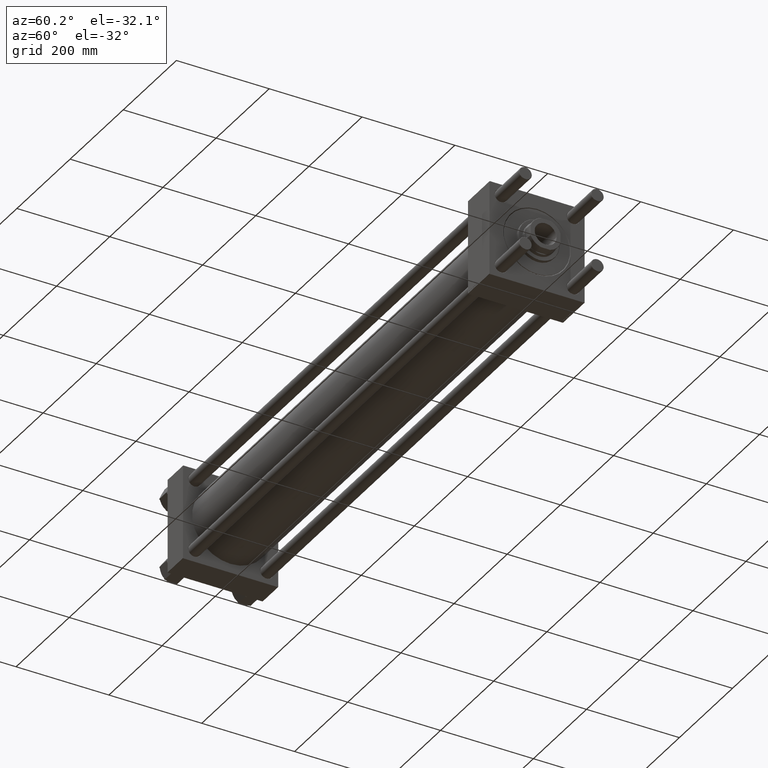
[diagram: clean part render]
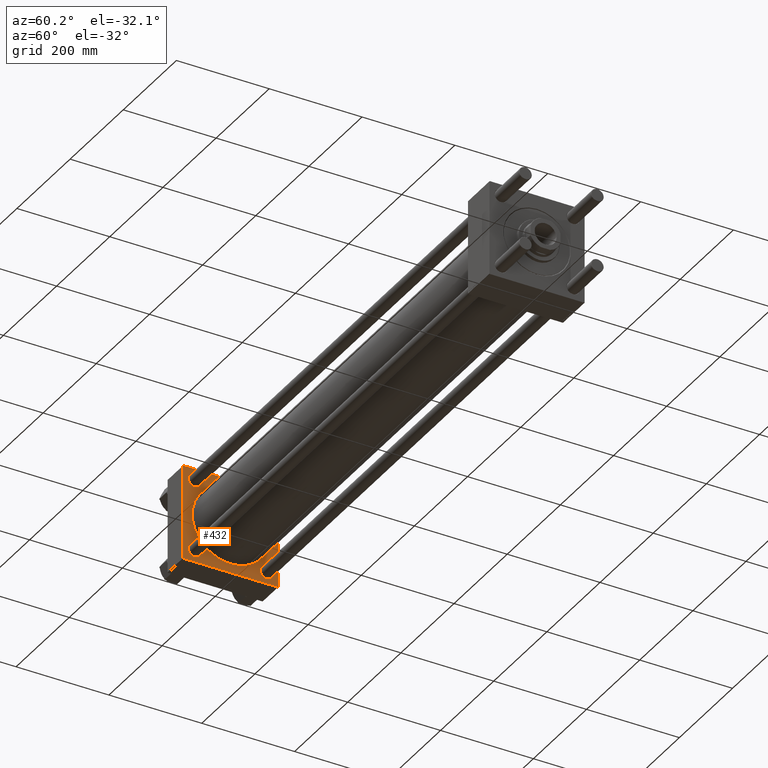
[diagram: same view with one face highlighted and labeled with its STEP entity id]
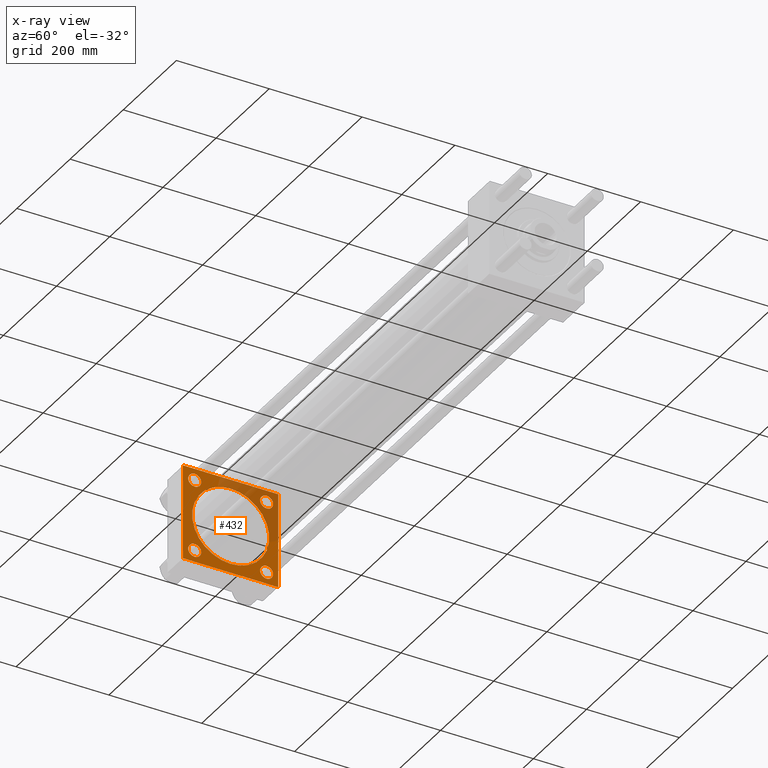
[diagram: x-ray of the same camera — body ghosted, the highlighted face saturated]
A machine part, auxiliary view. The second image highlights one B-rep face of the part: STEP entity #432.
The next image is the same camera in x-ray: the body ghosted, the highlighted face saturated — about 29% of this face is hidden behind the body in this view.
In plain terms, the highlighted planar face has unit normal (-1, 0, 0).
Its self-contained STEP definition (entity closure, byte-faithful):
#49 = EDGE_CURVE ( 'NONE', #44096, #53611, #40705, .T. ) ;
#432 = ADVANCED_FACE ( 'NONE', ( #20638, #2705, #47551, #29034, #37418, #25560 ), #51327, .F. ) ;
#537 = CARTESIAN_POINT ( 'NONE',  ( 58.00000000000000000, -101.9999999999999432, -102.5000000000000000 ) ) ;
#564 = CARTESIAN_POINT ( 'NONE',  ( 58.00000000000000000, 77.44999999999998863, -77.45000000000001705 ) ) ;
#686 = DIRECTION ( 'NONE',  ( 0.000000000000000000, 0.000000000000000000, 1.000000000000000000 ) ) ;
#773 = CIRCLE ( 'NONE', #2648, 13.99999999999956835 ) ;
#820 = AXIS2_PLACEMENT_3D ( 'NONE', #19798, #14883, #11125 ) ;
#1198 = VECTOR ( 'NONE', #1915, 1000.000000000000114 ) ;
#1405 = ORIENTED_EDGE ( 'NONE', *, *, #20593, .T. ) ;
#1511 = CARTESIAN_POINT ( 'NONE',  ( 58.00000000000000000, -102.4999999999999716, 102.5000000000000000 ) ) ;
#1603 = AXIS2_PLACEMENT_3D ( 'NONE', #39588, #7796, #57256 ) ;
#1915 = DIRECTION ( 'NONE',  ( -0.000000000000000000, 0.7071067811865474617, 0.7071067811865474617 ) ) ;
#2648 = AXIS2_PLACEMENT_3D ( 'NONE', #16372, #16931, #51414 ) ;
#2705 = FACE_BOUND ( 'NONE', #10591, .T. ) ;
#2916 = EDGE_CURVE ( 'NONE', #9733, #49512, #43675, .T. ) ;
#2994 = CARTESIAN_POINT ( 'NONE',  ( 58.00000000000000000, 102.5000000000000284, 102.5000000000000284 ) ) ;
#3543 = VERTEX_POINT ( 'NONE', #43717 ) ;
#4305 = EDGE_CURVE ( 'NONE', #53048, #13144, #54957, .T. ) ;
#4880 = DIRECTION ( 'NONE',  ( 0.000000000000000000, 0.7071067811865474617, -0.7071067811865474617 ) ) ;
#5279 = CIRCLE ( 'NONE', #1603, 13.99999999999956835 ) ;
#5709 = VERTEX_POINT ( 'NONE', #30022 ) ;
#5765 = DIRECTION ( 'NONE',  ( 0.000000000000000000, -1.000000000000000000, -1.353930517835556973E-16 ) ) ;
#5778 = DIRECTION ( 'NONE',  ( 0.000000000000000000, 0.000000000000000000, 1.000000000000000000 ) ) ;
#5958 = ORIENTED_EDGE ( 'NONE', *, *, #50037, .T. ) ;
#6328 = CIRCLE ( 'NONE', #8200, 13.99999999999956835 ) ;
#6626 = CARTESIAN_POINT ( 'NONE',  ( 58.00000000000000000, -77.44999999999996021, -77.45000000000003126 ) ) ;
#7622 = CARTESIAN_POINT ( 'NONE',  ( 58.00000000000000000, 0.000000000000000000, 0.000000000000000000 ) ) ;
#7796 = DIRECTION ( 'NONE',  ( -1.000000000000000000, 0.000000000000000000, 0.000000000000000000 ) ) ;
#8200 = AXIS2_PLACEMENT_3D ( 'NONE', #564, #19078, #36726 ) ;
#8437 = DIRECTION ( 'NONE',  ( 0.000000000000000000, 0.000000000000000000, 1.000000000000000000 ) ) ;
#8469 = DIRECTION ( 'NONE',  ( 0.000000000000000000, 0.000000000000000000, -1.000000000000000000 ) ) ;
#9047 = CARTESIAN_POINT ( 'NONE',  ( 58.00000000000000000, 77.44999999999998863, -91.44999999999959073 ) ) ;
#9090 = VERTEX_POINT ( 'NONE', #9047 ) ;
#9648 = EDGE_CURVE ( 'NONE', #5709, #21693, #34536, .T. ) ;
#9653 = CARTESIAN_POINT ( 'NONE',  ( 58.00000000000000000, 102.0000000000000142, -102.4999999999999716 ) ) ;
#9733 = VERTEX_POINT ( 'NONE', #18006 ) ;
#10129 = ORIENTED_EDGE ( 'NONE', *, *, #49, .T. ) ;
#10548 = VECTOR ( 'NONE', #4880, 1000.000000000000114 ) ;
#10591 = EDGE_LOOP ( 'NONE', ( #38425, #1405 ) ) ;
#11125 = DIRECTION ( 'NONE',  ( 0.000000000000000000, 0.000000000000000000, 1.000000000000000000 ) ) ;
#11402 = AXIS2_PLACEMENT_3D ( 'NONE', #6626, #54396, #14729 ) ;
#12540 = DIRECTION ( 'NONE',  ( -0.000000000000000000, -0.7071067811865474617, -0.7071067811865474617 ) ) ;
#12572 = VERTEX_POINT ( 'NONE', #38116 ) ;
#13144 = VERTEX_POINT ( 'NONE', #13981 ) ;
#13276 = CARTESIAN_POINT ( 'NONE',  ( 58.00000000000000000, 102.0000000000000142, 102.5000000000000284 ) ) ;
#13580 = VECTOR ( 'NONE', #19170, 1000.000000000000000 ) ;
#13594 = DIRECTION ( 'NONE',  ( 1.000000000000000000, -0.000000000000000000, -0.000000000000000000 ) ) ;
#13793 = CARTESIAN_POINT ( 'NONE',  ( 58.00000000000000000, -77.44999999999996021, 77.45000000000003126 ) ) ;
#13981 = CARTESIAN_POINT ( 'NONE',  ( 58.00000000000000000, -77.44999999999996021, 91.44999999999960494 ) ) ;
#14729 = DIRECTION ( 'NONE',  ( 0.000000000000000000, 0.000000000000000000, 1.000000000000000000 ) ) ;
#14826 = ORIENTED_EDGE ( 'NONE', *, *, #21260, .T. ) ;
#14883 = DIRECTION ( 'NONE',  ( -1.000000000000000000, 0.000000000000000000, 0.000000000000000000 ) ) ;
#15382 = LINE ( 'NONE', #1511, #13580 ) ;
#15590 = CIRCLE ( 'NONE', #51693, 13.99999999999956835 ) ;
#15644 = VECTOR ( 'NONE', #8469, 1000.000000000000000 ) ;
#16178 = EDGE_CURVE ( 'NONE', #3543, #20639, #5279, .T. ) ;
#16372 = CARTESIAN_POINT ( 'NONE',  ( 58.00000000000000000, 77.44999999999998863, 77.45000000000001705 ) ) ;
#16657 = EDGE_CURVE ( 'NONE', #21693, #9733, #15382, .T. ) ;
#16931 = DIRECTION ( 'NONE',  ( -1.000000000000000000, 0.000000000000000000, 0.000000000000000000 ) ) ;
#17099 = DIRECTION ( 'NONE',  ( -1.000000000000000000, 0.000000000000000000, 0.000000000000000000 ) ) ;
#17456 = CIRCLE ( 'NONE', #820, 13.99999999999956835 ) ;
#18006 = CARTESIAN_POINT ( 'NONE',  ( 58.00000000000000000, -102.5000000000000000, -101.9999999999998863 ) ) ;
#18439 = CARTESIAN_POINT ( 'NONE',  ( 58.00000000000000000, 102.0000000000000142, 102.5000000000000284 ) ) ;
#18628 = ORIENTED_EDGE ( 'NONE', *, *, #4305, .T. ) ;
#19034 = CIRCLE ( 'NONE', #23624, 83.00000000000000000 ) ;
#19078 = DIRECTION ( 'NONE',  ( -1.000000000000000000, 0.000000000000000000, 0.000000000000000000 ) ) ;
#19170 = DIRECTION ( 'NONE',  ( 0.000000000000000000, -1.353930517835556973E-16, -1.000000000000000000 ) ) ;
#19350 = VERTEX_POINT ( 'NONE', #21415 ) ;
#19558 = ORIENTED_EDGE ( 'NONE', *, *, #31595, .T. ) ;
#19769 = DIRECTION ( 'NONE',  ( -1.000000000000000000, 0.000000000000000000, 0.000000000000000000 ) ) ;
#19798 = CARTESIAN_POINT ( 'NONE',  ( 58.00000000000000000, -77.44999999999996021, -77.45000000000003126 ) ) ;
#20249 = EDGE_CURVE ( 'NONE', #20639, #3543, #773, .T. ) ;
#20593 = EDGE_CURVE ( 'NONE', #49605, #9090, #6328, .T. ) ;
#20638 = FACE_BOUND ( 'NONE', #41543, .T. ) ;
#20639 = VERTEX_POINT ( 'NONE', #32125 ) ;
#20696 = LINE ( 'NONE', #39188, #44278 ) ;
#20927 = DIRECTION ( 'NONE',  ( 0.000000000000000000, 0.000000000000000000, 1.000000000000000000 ) ) ;
#21260 = EDGE_CURVE ( 'NONE', #33025, #36097, #17456, .T. ) ;
#21415 = CARTESIAN_POINT ( 'NONE',  ( 58.00000000000004974, -2.602085213965210642E-15, 83.00000000000000000 ) ) ;
#21540 = DIRECTION ( 'NONE',  ( 0.000000000000000000, -1.000000000000000000, -1.353930517835556727E-16 ) ) ;
#21597 = AXIS2_PLACEMENT_3D ( 'NONE', #40334, #55008, #686 ) ;
#21693 = VERTEX_POINT ( 'NONE', #27716 ) ;
#21968 = DIRECTION ( 'NONE',  ( 0.000000000000000000, -0.7071067811865474617, 0.7071067811865474617 ) ) ;
#22577 = EDGE_CURVE ( 'NONE', #44096, #49512, #20696, .T. ) ;
#23624 = AXIS2_PLACEMENT_3D ( 'NONE', #23713, #13594, #5778 ) ;
#23713 = CARTESIAN_POINT ( 'NONE',  ( 58.00000000000004974, -2.602085213965210642E-15, 0.000000000000000000 ) ) ;
#23845 = EDGE_CURVE ( 'NONE', #12572, #53611, #48117, .T. ) ;
#24740 = VECTOR ( 'NONE', #21968, 1000.000000000000114 ) ;
#25560 = FACE_OUTER_BOUND ( 'NONE', #47544, .T. ) ;
#26518 = ORIENTED_EDGE ( 'NONE', *, *, #33441, .F. ) ;
#27108 = DIRECTION ( 'NONE',  ( 0.000000000000000000, 0.000000000000000000, 1.000000000000000000 ) ) ;
#27716 = CARTESIAN_POINT ( 'NONE',  ( 58.00000000000000000, -102.4999999999999716, 102.0000000000000000 ) ) ;
#29026 = EDGE_LOOP ( 'NONE', ( #18628, #47405 ) ) ;
#29034 = FACE_BOUND ( 'NONE', #43938, .T. ) ;
#30004 = CIRCLE ( 'NONE', #11402, 13.99999999999956835 ) ;
#30022 = CARTESIAN_POINT ( 'NONE',  ( 58.00000000000000000, -101.9999999999999147, 102.5000000000000000 ) ) ;
#30833 = EDGE_CURVE ( 'NONE', #13144, #53048, #56780, .T. ) ;
#31595 = EDGE_CURVE ( 'NONE', #36097, #33025, #30004, .T. ) ;
#31825 = AXIS2_PLACEMENT_3D ( 'NONE', #13793, #54022, #27108 ) ;
#31870 = AXIS2_PLACEMENT_3D ( 'NONE', #34212, #17099, #8437 ) ;
#32125 = CARTESIAN_POINT ( 'NONE',  ( 58.00000000000000000, 77.44999999999998863, 63.45000000000045048 ) ) ;
#33025 = VERTEX_POINT ( 'NONE', #48515 ) ;
#33242 = LINE ( 'NONE', #45405, #49772 ) ;
#33441 = EDGE_CURVE ( 'NONE', #19350, #55993, #56736, .T. ) ;
#33794 = CARTESIAN_POINT ( 'NONE',  ( 58.00000000000000000, 102.5000000000000284, -101.9999999999999147 ) ) ;
#34212 = CARTESIAN_POINT ( 'NONE',  ( 58.00000000000000000, -77.44999999999996021, 77.45000000000003126 ) ) ;
#34401 = CARTESIAN_POINT ( 'NONE',  ( 58.00000000000000000, -77.44999999999996021, -91.44999999999960494 ) ) ;
#34536 = LINE ( 'NONE', #52205, #49577 ) ;
#35513 = ORIENTED_EDGE ( 'NONE', *, *, #2916, .T. ) ;
#36097 = VERTEX_POINT ( 'NONE', #34401 ) ;
#36501 = DIRECTION ( 'NONE',  ( -1.000000000000000000, 0.000000000000000000, 0.000000000000000000 ) ) ;
#36726 = DIRECTION ( 'NONE',  ( 0.000000000000000000, 0.000000000000000000, 1.000000000000000000 ) ) ;
#36794 = DIRECTION ( 'NONE',  ( 0.000000000000000000, 0.000000000000000000, 1.000000000000000000 ) ) ;
#37418 = FACE_BOUND ( 'NONE', #49570, .T. ) ;
#38052 = ORIENTED_EDGE ( 'NONE', *, *, #39214, .F. ) ;
#38116 = CARTESIAN_POINT ( 'NONE',  ( 58.00000000000000000, 102.5000000000000284, 102.0000000000000142 ) ) ;
#38297 = CARTESIAN_POINT ( 'NONE',  ( 58.00000000000000000, -77.44999999999996021, 63.45000000000046469 ) ) ;
#38425 = ORIENTED_EDGE ( 'NONE', *, *, #53691, .T. ) ;
#39188 = CARTESIAN_POINT ( 'NONE',  ( 58.00000000000000000, 102.5000000000000284, -102.4999999999999716 ) ) ;
#39214 = EDGE_CURVE ( 'NONE', #55993, #19350, #19034, .T. ) ;
#39588 = CARTESIAN_POINT ( 'NONE',  ( 58.00000000000000000, 77.44999999999998863, 77.45000000000001705 ) ) ;
#40299 = ORIENTED_EDGE ( 'NONE', *, *, #20249, .T. ) ;
#40329 = ORIENTED_EDGE ( 'NONE', *, *, #16178, .T. ) ;
#40334 = CARTESIAN_POINT ( 'NONE',  ( 58.00000000000004974, -2.602085213965210642E-15, 0.000000000000000000 ) ) ;
#40705 = LINE ( 'NONE', #41563, #1198 ) ;
#41135 = CARTESIAN_POINT ( 'NONE',  ( 58.00000000000000000, 77.44999999999998863, -77.45000000000001705 ) ) ;
#41543 = EDGE_LOOP ( 'NONE', ( #19558, #14826 ) ) ;
#41563 = CARTESIAN_POINT ( 'NONE',  ( 58.00000000000000000, 102.5000000000000284, -101.9999999999999716 ) ) ;
#42275 = ORIENTED_EDGE ( 'NONE', *, *, #22577, .F. ) ;
#42963 = ORIENTED_EDGE ( 'NONE', *, *, #16657, .T. ) ;
#43675 = LINE ( 'NONE', #537, #10548 ) ;
#43717 = CARTESIAN_POINT ( 'NONE',  ( 58.00000000000000000, 77.44999999999998863, 91.44999999999959073 ) ) ;
#43807 = CARTESIAN_POINT ( 'NONE',  ( 58.00000000000000000, 77.44999999999998863, -63.45000000000045048 ) ) ;
#43938 = EDGE_LOOP ( 'NONE', ( #40299, #40329 ) ) ;
#44096 = VERTEX_POINT ( 'NONE', #9653 ) ;
#44278 = VECTOR ( 'NONE', #21540, 1000.000000000000000 ) ;
#45405 = CARTESIAN_POINT ( 'NONE',  ( 58.00000000000000000, 102.5000000000000284, 102.5000000000000284 ) ) ;
#47405 = ORIENTED_EDGE ( 'NONE', *, *, #30833, .T. ) ;
#47544 = EDGE_LOOP ( 'NONE', ( #42275, #10129, #53863, #5958, #50166, #53072, #42963, #35513 ) ) ;
#47551 = FACE_BOUND ( 'NONE', #29026, .T. ) ;
#48117 = LINE ( 'NONE', #2994, #15644 ) ;
#48379 = AXIS2_PLACEMENT_3D ( 'NONE', #7622, #19769, #20927 ) ;
#48515 = CARTESIAN_POINT ( 'NONE',  ( 58.00000000000000000, -77.44999999999996021, -63.45000000000046469 ) ) ;
#49512 = VERTEX_POINT ( 'NONE', #50509 ) ;
#49570 = EDGE_LOOP ( 'NONE', ( #26518, #38052 ) ) ;
#49577 = VECTOR ( 'NONE', #12540, 1000.000000000000114 ) ;
#49605 = VERTEX_POINT ( 'NONE', #43807 ) ;
#49772 = VECTOR ( 'NONE', #5765, 1000.000000000000000 ) ;
#50037 = EDGE_CURVE ( 'NONE', #12572, #54156, #52661, .T. ) ;
#50166 = ORIENTED_EDGE ( 'NONE', *, *, #52327, .T. ) ;
#50509 = CARTESIAN_POINT ( 'NONE',  ( 58.00000000000000000, -101.9999999999999432, -102.5000000000000000 ) ) ;
#51327 = PLANE ( 'NONE',  #48379 ) ;
#51414 = DIRECTION ( 'NONE',  ( 0.000000000000000000, 0.000000000000000000, 1.000000000000000000 ) ) ;
#51693 = AXIS2_PLACEMENT_3D ( 'NONE', #41135, #36501, #36794 ) ;
#52001 = CARTESIAN_POINT ( 'NONE',  ( 58.00000000000004974, 7.562483218957820855E-15, -83.00000000000000000 ) ) ;
#52205 = CARTESIAN_POINT ( 'NONE',  ( 58.00000000000000000, -102.4999999999999716, 102.0000000000000000 ) ) ;
#52327 = EDGE_CURVE ( 'NONE', #54156, #5709, #33242, .T. ) ;
#52661 = LINE ( 'NONE', #13276, #24740 ) ;
#53048 = VERTEX_POINT ( 'NONE', #38297 ) ;
#53072 = ORIENTED_EDGE ( 'NONE', *, *, #9648, .T. ) ;
#53611 = VERTEX_POINT ( 'NONE', #33794 ) ;
#53691 = EDGE_CURVE ( 'NONE', #9090, #49605, #15590, .T. ) ;
#53863 = ORIENTED_EDGE ( 'NONE', *, *, #23845, .F. ) ;
#54022 = DIRECTION ( 'NONE',  ( -1.000000000000000000, 0.000000000000000000, 0.000000000000000000 ) ) ;
#54156 = VERTEX_POINT ( 'NONE', #18439 ) ;
#54396 = DIRECTION ( 'NONE',  ( -1.000000000000000000, 0.000000000000000000, 0.000000000000000000 ) ) ;
#54957 = CIRCLE ( 'NONE', #31870, 13.99999999999956835 ) ;
#55008 = DIRECTION ( 'NONE',  ( 1.000000000000000000, -0.000000000000000000, -0.000000000000000000 ) ) ;
#55993 = VERTEX_POINT ( 'NONE', #52001 ) ;
#56736 = CIRCLE ( 'NONE', #21597, 83.00000000000000000 ) ;
#56780 = CIRCLE ( 'NONE', #31825, 13.99999999999956835 ) ;
#57256 = DIRECTION ( 'NONE',  ( 0.000000000000000000, 0.000000000000000000, 1.000000000000000000 ) ) ;